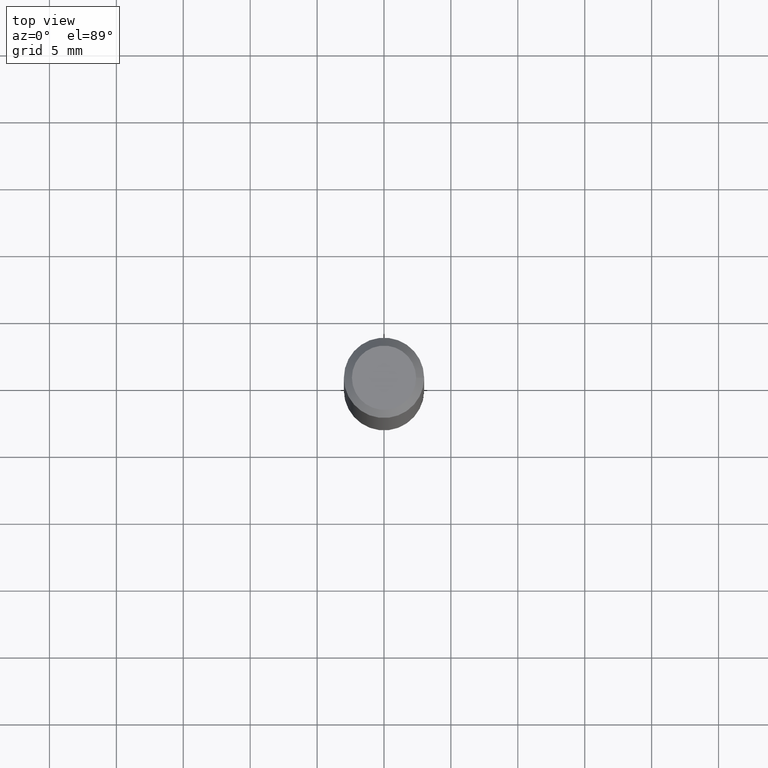
[diagram: clean part render]
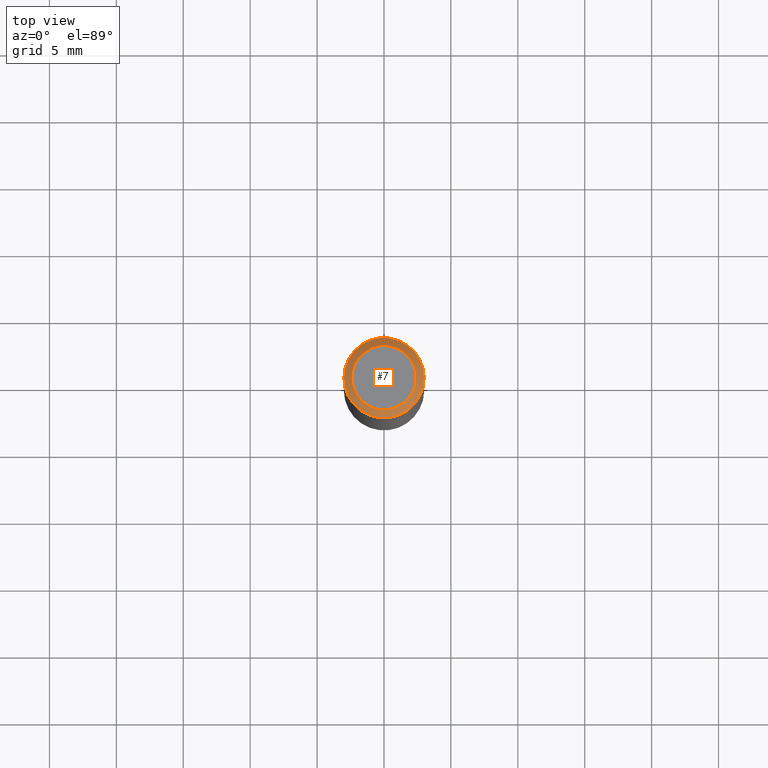
[diagram: same view with one face highlighted and labeled with its STEP entity id]
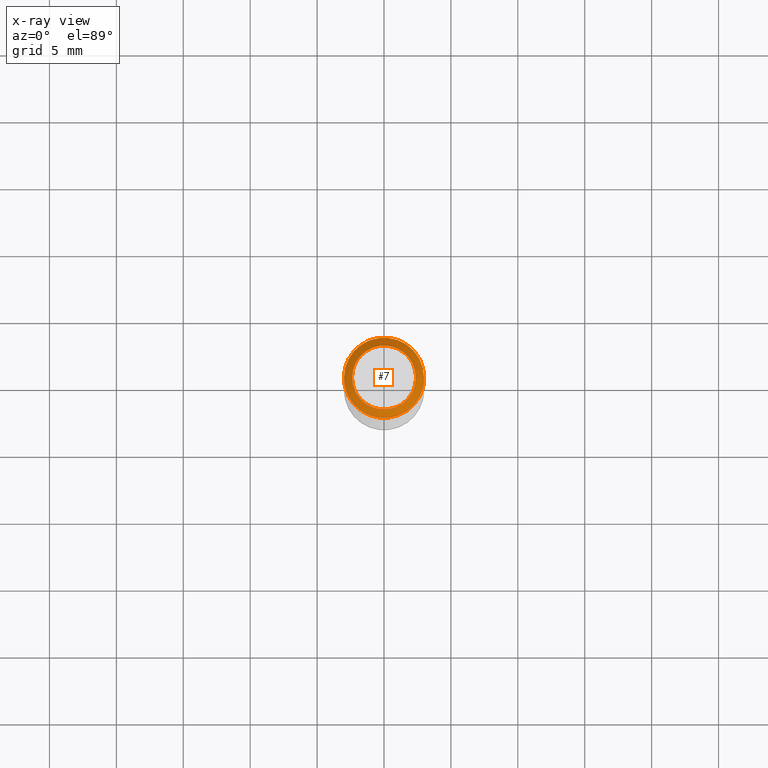
[diagram: x-ray of the same camera — body ghosted, the highlighted face saturated]
A machine part, top view. The second image highlights one B-rep face of the part: STEP entity #7.
The next image is the same camera in x-ray: the body ghosted, the highlighted face saturated — about 0% of this face is hidden behind the body in this view.
In plain terms, the highlighted conical surface has half-angle 45 deg.
Its self-contained STEP definition (entity closure, byte-faithful):
#1 = VERTEX_POINT ( 'NONE', #211 ) ;
#7 = ADVANCED_FACE ( 'NONE', ( #134, #133 ), #112, .T. ) ;
#9 = DIRECTION ( 'NONE',  ( -1.000000000000000000, 0.0000000000000000000, 6.982962677686266711E-15 ) ) ;
#14 = CARTESIAN_POINT ( 'NONE',  ( 0.0000000000000000000, 0.0000000000000000000, 0.0000000000000000000 ) ) ;
#16 = DIRECTION ( 'NONE',  ( 6.982962677686266711E-15, 0.0000000000000000000, 1.000000000000000000 ) ) ;
#18 = DIRECTION ( 'NONE',  ( 1.000000000000000000, 0.0000000000000000000, -6.975033976323412122E-15 ) ) ;
#23 = EDGE_LOOP ( 'NONE', ( #183 ) ) ;
#61 = VERTEX_POINT ( 'NONE', #158 ) ;
#65 = AXIS2_PLACEMENT_3D ( 'NONE', #14, #188, #103 ) ;
#72 = DIRECTION ( 'NONE',  ( -6.982962677686266711E-15, 0.0000000000000000000, -1.000000000000000000 ) ) ;
#85 = AXIS2_PLACEMENT_3D ( 'NONE', #202, #72, #9 ) ;
#103 = DIRECTION ( 'NONE',  ( 1.000000000000000000, 0.0000000000000000000, -6.982962677686266711E-15 ) ) ;
#106 = CARTESIAN_POINT ( 'NONE',  ( -4.189777606611783692E-15, 0.0000000000000000000, -0.6000000000000033085 ) ) ;
#112 = CONICAL_SURFACE ( 'NONE', #85, 2.399999999999998135, 0.7853981633974472798 ) ;
#128 = CIRCLE ( 'NONE', #198, 3.000000000000000000 ) ;
#133 = FACE_BOUND ( 'NONE', #162, .T. ) ;
#134 = FACE_OUTER_BOUND ( 'NONE', #23, .T. ) ;
#135 = EDGE_CURVE ( 'NONE', #61, #61, #178, .T. ) ;
#146 = EDGE_CURVE ( 'NONE', #1, #1, #128, .T. ) ;
#158 = CARTESIAN_POINT ( 'NONE',  ( 2.399999999999998135, 0.0000000000000000000, -1.675911042644702748E-14 ) ) ;
#162 = EDGE_LOOP ( 'NONE', ( #165 ) ) ;
#165 = ORIENTED_EDGE ( 'NONE', *, *, #135, .F. ) ;
#178 = CIRCLE ( 'NONE', #65, 2.399999999999998135 ) ;
#183 = ORIENTED_EDGE ( 'NONE', *, *, #146, .T. ) ;
#188 = DIRECTION ( 'NONE',  ( 6.982962677686266711E-15, 0.0000000000000000000, 1.000000000000000000 ) ) ;
#198 = AXIS2_PLACEMENT_3D ( 'NONE', #106, #16, #18 ) ;
#202 = CARTESIAN_POINT ( 'NONE',  ( 0.0000000000000000000, 0.0000000000000000000, 0.0000000000000000000 ) ) ;
#211 = CARTESIAN_POINT ( 'NONE',  ( 2.999999999999995559, 0.0000000000000000000, -0.6000000000000241807 ) ) ;